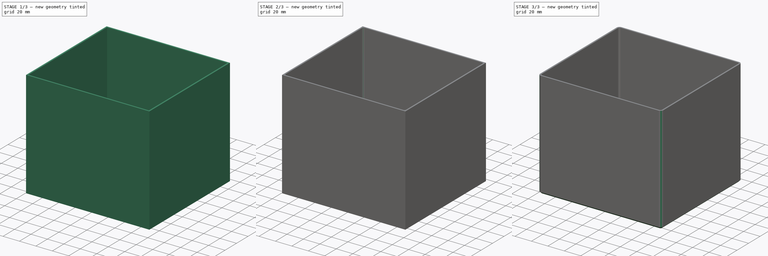
[diagram: build sequence overview — one tinted view per stage of 3, left to right]
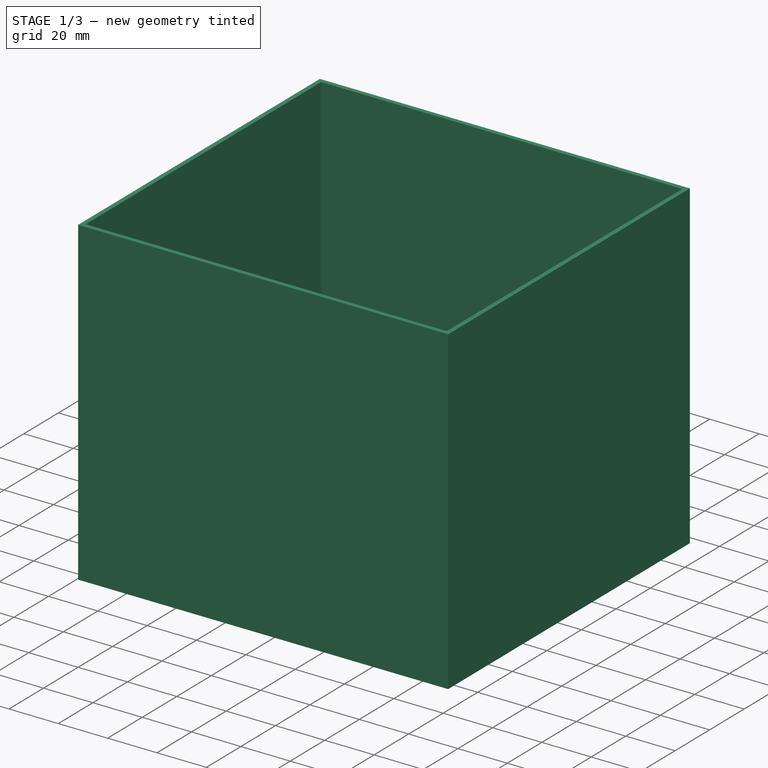
[diagram: stage 1 of 3 — iso view after this stage's code; geometry added in this stage tinted green]
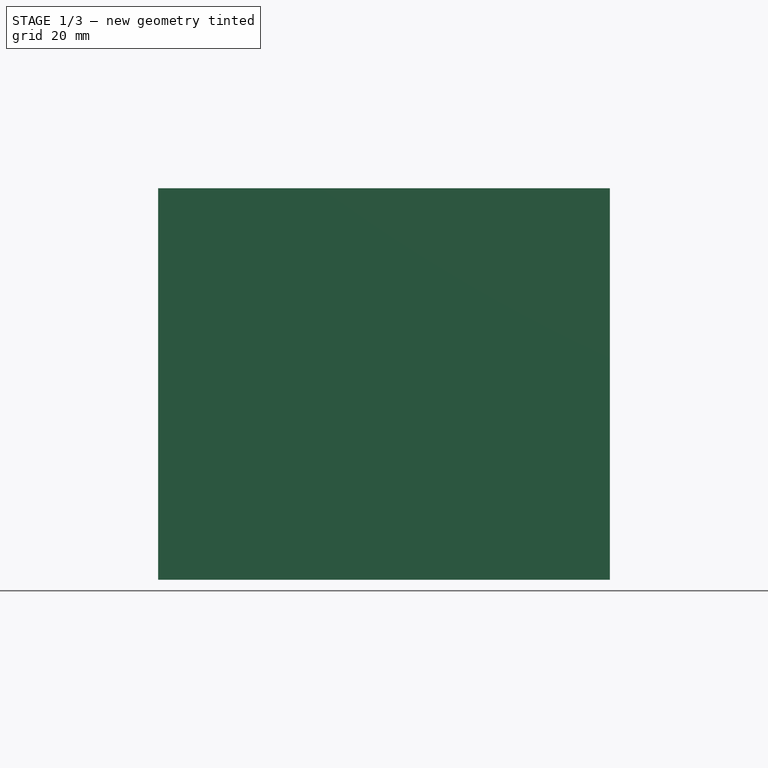
[diagram: stage 1 of 3 — front view after this stage's code; geometry added in this stage tinted green]
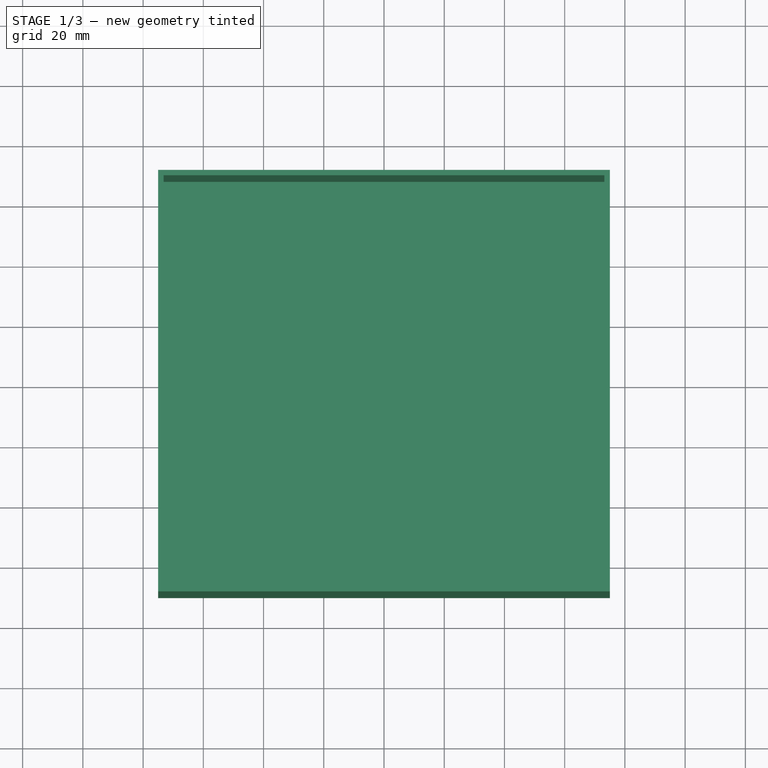
[diagram: stage 1 of 3 — top view after this stage's code; geometry added in this stage tinted green]
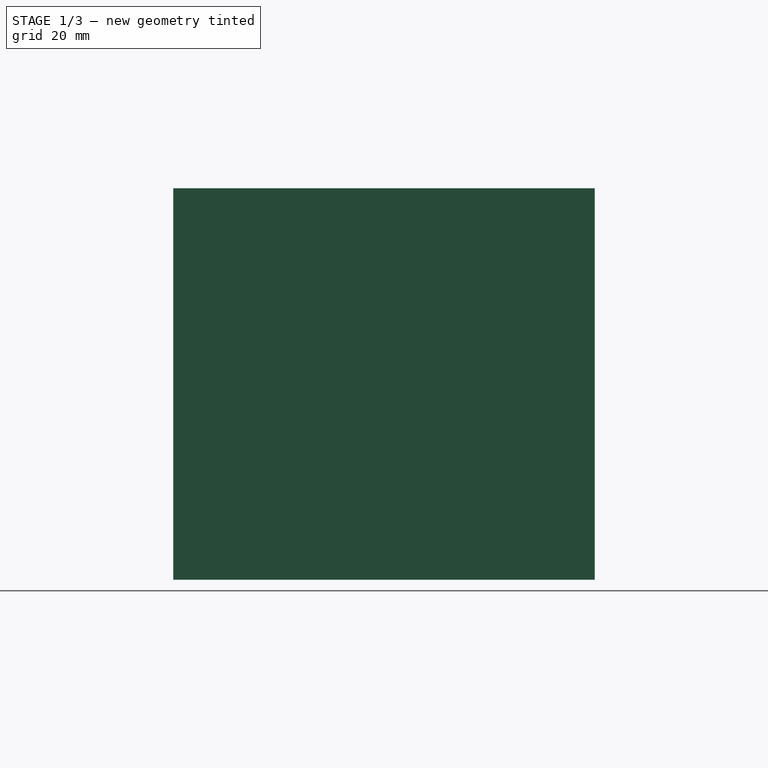
[diagram: stage 1 of 3 — right view after this stage's code; geometry added in this stage tinted green]
FCSTD DOCUMENT  (FreeCAD 0.21R33771 (Git))
Label: square_plant_pot
License: All rights reserved
LicenseURL: https://en.wikipedia.org/wiki/All_rights_reserved
objects: Sketcher::SketchObject×3, Spreadsheet::Sheet×2, PartDesign::Pocket×2, PartDesign::Fillet×2, PartDesign::Pad×1, PartDesign::Plane×1, PartDesign::Chamfer×1, PartDesign::Body×1
note: 17 computed .brp shape members not serialized (recipe doc carries the construction recipe); baked Part::Feature solids carry a one-line shape summary decoded from their .brp

FEATURE [Spreadsheet::Sheet] Spreadsheet  label="settings"
  cells = A1='Wall thickness; B1(wall_thickness)=1.8; C1='Bottom Wall thickness; D1(bottom_wall_thickness)=3; E1='Inner fillet; F1(fillet_inner)=2; G1='Drain hole dia; H1(drain_hole_dia)=10; A2='Pot width; B2(pot_width)=150; E2='outer fillet; F2(fillet_outer)=3.6; A3='Pot Depth; B3(pot_depth)=140; E3='Bottom chamfer; F3(chamfer_bottom)=2; A4='Pot height; B4(pot_height)=130
FEATURE [Spreadsheet::Sheet] Spreadsheet001  label="calculations"
  cells = A1='Cavity Width; B1(cavity_width)==<<settings>>.pot_width - <<settings>>.wall_thickness * 2; C1='Drain hole X distance; D1(hole_spacing_x)==<<settings>>.pot_width / 2; A2='Cavity Depth; B2(cavity_depth)==<<settings>>.pot_depth - <<settings>>.wall_thickness * 2; C2='Drain hole Y distance; D2(hole_spacing_y)==<<settings>>.pot_depth / 2; A3='Cavity Height; B3(cavity_height)==<<settings>>.pot_height - <<settings>>.bottom_wall_thickness
FEATURE [Sketcher::SketchObject] Sketch
  FullyConstrained = true
  MapMode = 5
  Support = -> [XY_Plane]
  expr: Constraints[10] = <<settings>>.pot_depth
  expr: Constraints[9] = <<settings>>.pot_width
  sketch-geometry (4):
    g0: LineSegment StartX=-75 StartY=70 StartZ=0 EndX=75 EndY=70 EndZ=0
    g1: LineSegment StartX=75 StartY=70 StartZ=0 EndX=75 EndY=-70 EndZ=0
    g2: LineSegment StartX=75 StartY=-70 StartZ=0 EndX=-75 EndY=-70 EndZ=0
    g3: LineSegment StartX=-75 StartY=-70 StartZ=0 EndX=-75 EndY=70 EndZ=0
  constraints (11):
    c: Coincident(g0,g1)
    c: Coincident(g1,g2)
    c: Coincident(g2,g3)
    c: Coincident(g3,g0)
    c: Horizontal(g0)
    c: Horizontal(g2)
    c: Vertical(g1)
    c: Vertical(g3)
    c: Symmetric(g0,g2,g-1)
    c: Distance(g0) = 150
    c: Distance(g1) = 140
FEATURE [PartDesign::Pad] Pad  label="pot_solid"
  Direction = (0,0,1)
  Length = 130
  Length2 = 10
  Profile = -> Sketch
  ReferenceAxis = -> Sketch [N_Axis]
  Type = 0
  expr: Length = <<settings>>.pot_height
FEATURE [PartDesign::Plane] DatumPlane  label="plane_top"
  AttachmentOffset = pos=(0,0,130) rot=(0,0,1;0rad)
  Length = 178.983
  MapMode = 5
  Placement = pos=(0,0,130) rot=(0,0,1;0rad)
  ResizeMode = 0
  Support = -> [XY_Plane]
  Width = 168.983
  expr: .AttachmentOffset.Base.z = <<settings>>.pot_height
FEATURE [Sketcher::SketchObject] Sketch001
  FullyConstrained = true
  MapMode = 5
  Placement = pos=(0,0,130) rot=(0,0,1;0rad)
  Support = -> [DatumPlane]
  expr: Constraints[10] = <<calculations>>.cavity_depth
  expr: Constraints[9] = <<calculations>>.cavity_width
  sketch-geometry (4):
    g0: LineSegment StartX=-73.2 StartY=68.2 StartZ=0 EndX=73.2 EndY=68.2 EndZ=0
    g1: LineSegment StartX=73.2 StartY=68.2 StartZ=0 EndX=73.2 EndY=-68.2 EndZ=0
    g2: LineSegment StartX=73.2 StartY=-68.2 StartZ=0 EndX=-73.2 EndY=-68.2 EndZ=0
    g3: LineSegment StartX=-73.2 StartY=-68.2 StartZ=0 EndX=-73.2 EndY=68.2 EndZ=0
  constraints (11):
    c: Coincident(g0,g1)
    c: Coincident(g1,g2)
    c: Coincident(g2,g3)
    c: Coincident(g3,g0)
    c: Horizontal(g0)
    c: Horizontal(g2)
    c: Vertical(g1)
    c: Vertical(g3)
    c: Symmetric(g0,g2,g-1)
    c: Distance(g0) = 146.4
    c: Distance(g1) = 136.4
FEATURE [PartDesign::Pocket] Pocket  label="pot_cavity"
  BaseFeature = -> Pad
  Direction = (0,0,-1)
  Length = 127
  Length2 = 5
  Profile = -> Sketch001
  ReferenceAxis = -> Sketch001 [N_Axis]
  Type = 0
  expr: Length = <<calculations>>.cavity_height
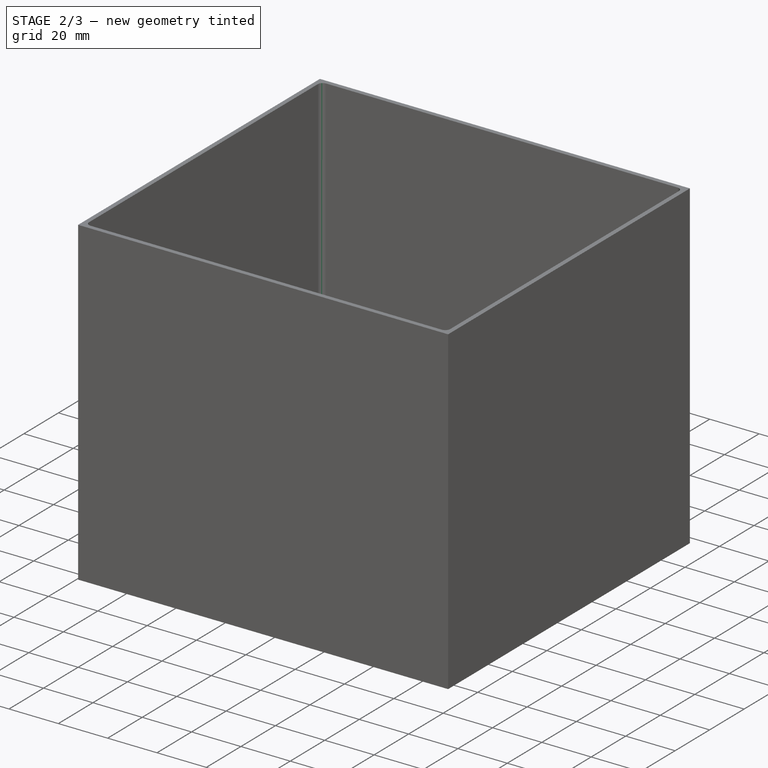
[diagram: stage 2 of 3 — iso view after this stage's code; geometry added in this stage tinted green]
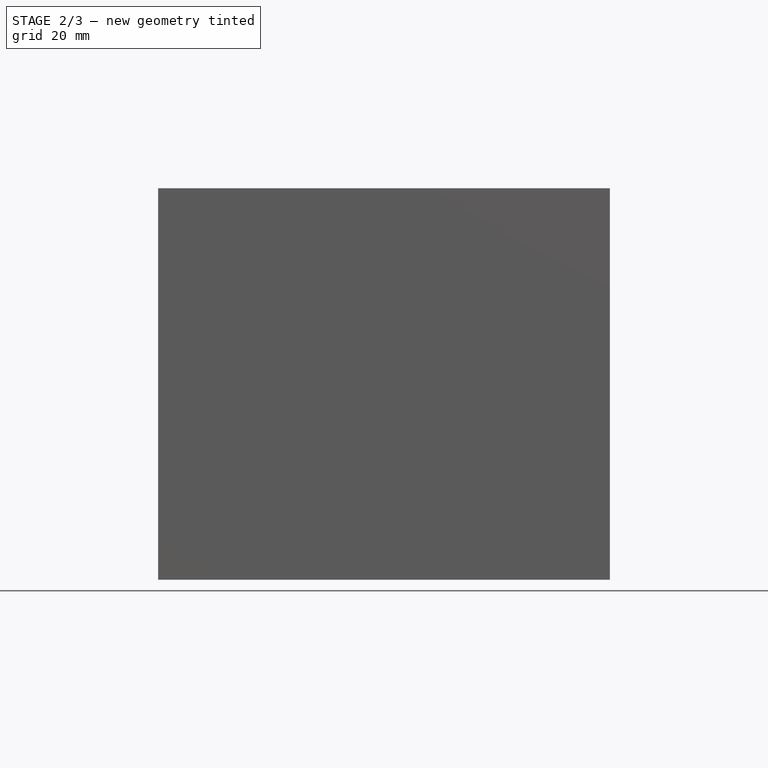
[diagram: stage 2 of 3 — front view after this stage's code; geometry added in this stage tinted green]
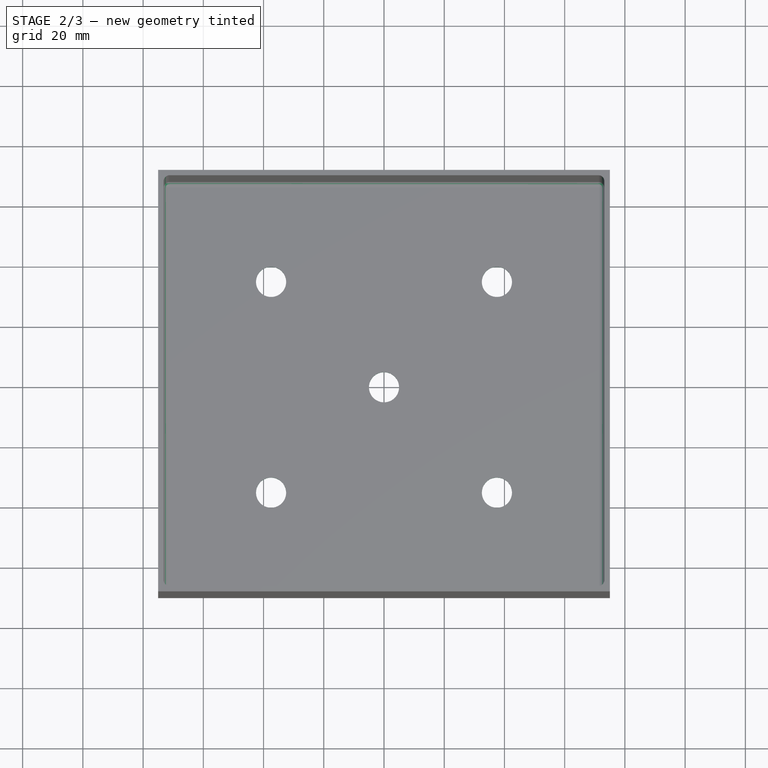
[diagram: stage 2 of 3 — top view after this stage's code; geometry added in this stage tinted green]
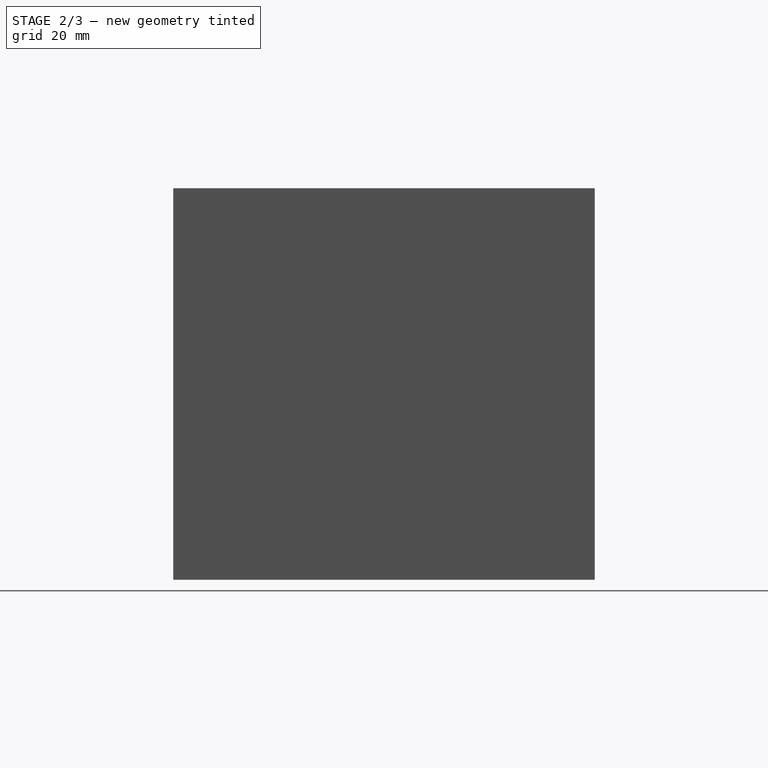
[diagram: stage 2 of 3 — right view after this stage's code; geometry added in this stage tinted green]
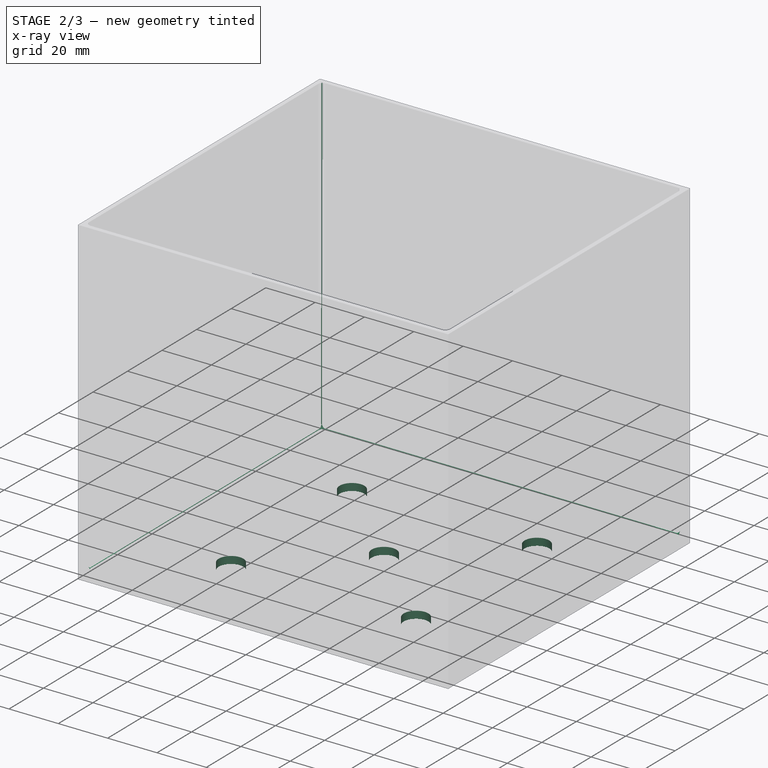
[diagram: stage 2 of 3 — x-ray composite at the iso view; earlier geometry ghosted, this stage's added geometry solid]
FEATURE [Sketcher::SketchObject] Sketch002
  FullyConstrained = true
  MapMode = 5
  Support = -> [XY_Plane]
  expr: Constraints[10] = <<calculations>>.hole_spacing_y
  expr: Constraints[18] = <<settings>>.drain_hole_dia
  expr: Constraints[9] = <<calculations>>.hole_spacing_x
  sketch-geometry (9):
    g0: LineSegment StartX=-37.5 StartY=35 StartZ=0 EndX=37.5 EndY=35 EndZ=0
    g1: LineSegment StartX=37.5 StartY=35 StartZ=0 EndX=37.5 EndY=-35 EndZ=0
    g2: LineSegment StartX=37.5 StartY=-35 StartZ=0 EndX=-37.5 EndY=-35 EndZ=0
    g3: LineSegment StartX=-37.5 StartY=-35 StartZ=0 EndX=-37.5 EndY=35 EndZ=0
    g4: Circle CenterX=-37.5 CenterY=35 CenterZ=0 NormalX=0 NormalY=0 NormalZ=1 AngleXU=0 Radius=5
    g5: Circle CenterX=37.5 CenterY=35 CenterZ=0 NormalX=0 NormalY=0 NormalZ=1 AngleXU=0 Radius=5
    g6: Circle CenterX=37.5 CenterY=-35 CenterZ=0 NormalX=0 NormalY=0 NormalZ=1 AngleXU=0 Radius=5
    g7: Circle CenterX=-37.5 CenterY=-35 CenterZ=0 NormalX=0 NormalY=0 NormalZ=1 AngleXU=0 Radius=5
    g8: Circle CenterX=0 CenterY=0 CenterZ=0 NormalX=0 NormalY=0 NormalZ=1 AngleXU=0 Radius=5
  constraints (21):
    c: Coincident(g0,g1)
    c: Coincident(g1,g2)
    c: Coincident(g2,g3)
    c: Coincident(g3,g0)
    c: Horizontal(g0)
    c: Horizontal(g2)
    c: Vertical(g1)
    c: Vertical(g3)
    c: Symmetric(g0,g2,g-1)
    c: Distance(g0) = 75
    c: Distance(g1) = 70
    c: Coincident(g4,g0)
    c: Coincident(g5,g0)
    c: Coincident(g6,g1)
    c: Coincident(g7,g2)
    c: Equal(g4,g7)
    c: Equal(g4,g6)
    c: Equal(g4,g5)
    c: Diameter(g4) = 10
    c: Coincident(g8,g-1)
    c: Equal(g4,g8)
FEATURE [PartDesign::Pocket] Pocket001  label="drain_holes"
  BaseFeature = -> Pocket
  Direction = (0,0,-1)
  Length = 5
  Length2 = 5
  Profile = -> Sketch002
  ReferenceAxis = -> Sketch002 [N_Axis]
  Reversed = true
  Type = 1
FEATURE [PartDesign::Fillet] Fillet  label="inner_fillet"
  Base = -> Pocket001 [Edge33,Edge39,Edge34,Edge32,Edge36,Edge35,Edge38,Edge37]
  BaseFeature = -> Pocket001
  Radius = 2
  SupportTransform = false
  UseAllEdges = false
  expr: Radius = <<settings>>.fillet_inner
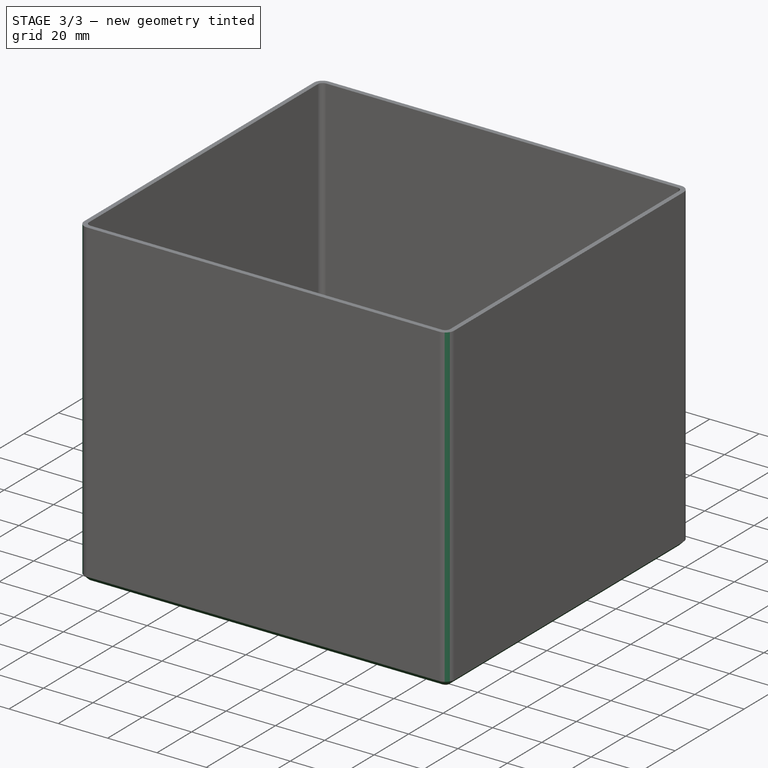
[diagram: stage 3 of 3 — iso view after this stage's code; geometry added in this stage tinted green]
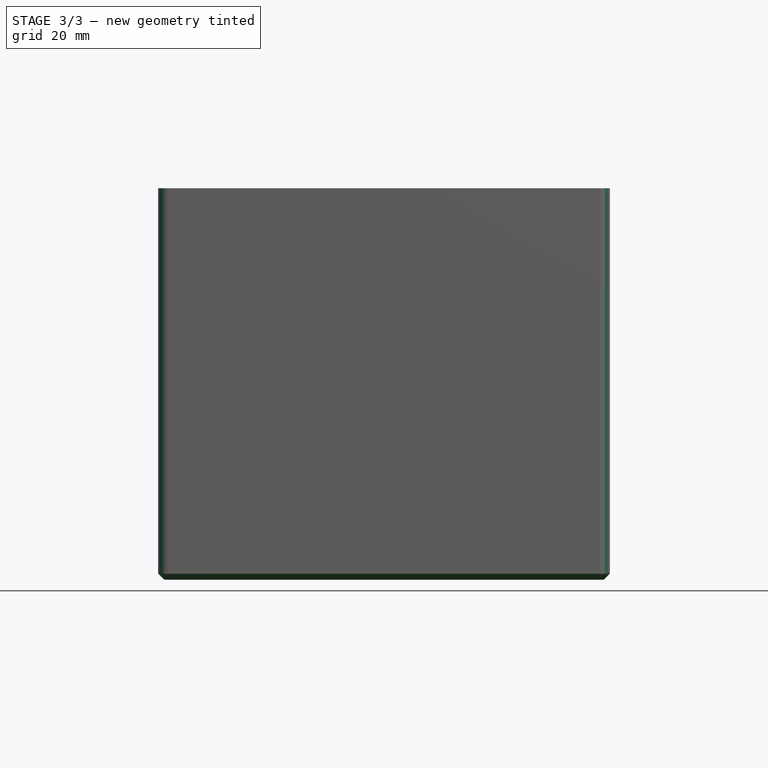
[diagram: stage 3 of 3 — front view after this stage's code; geometry added in this stage tinted green]
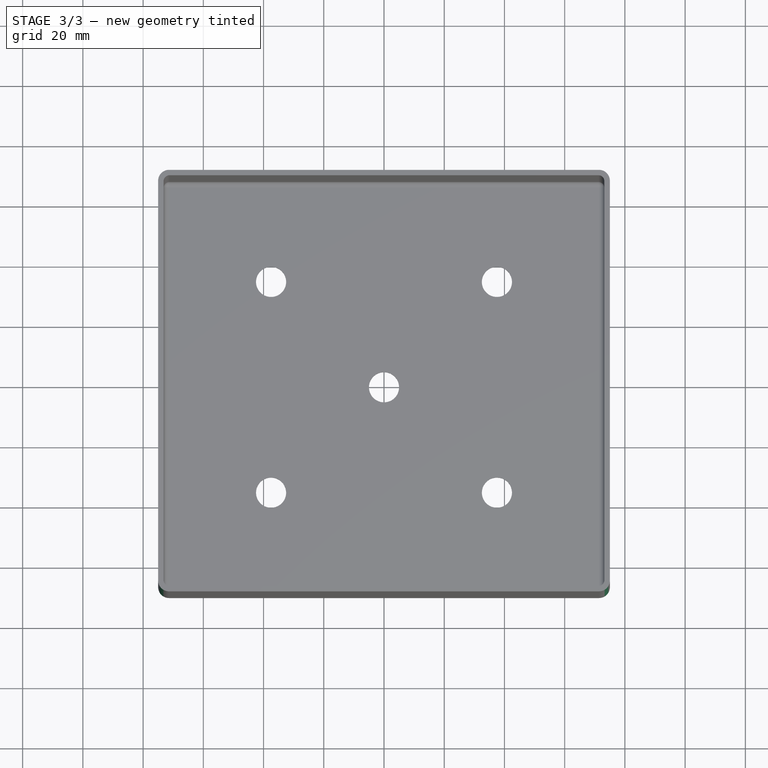
[diagram: stage 3 of 3 — top view after this stage's code; geometry added in this stage tinted green]
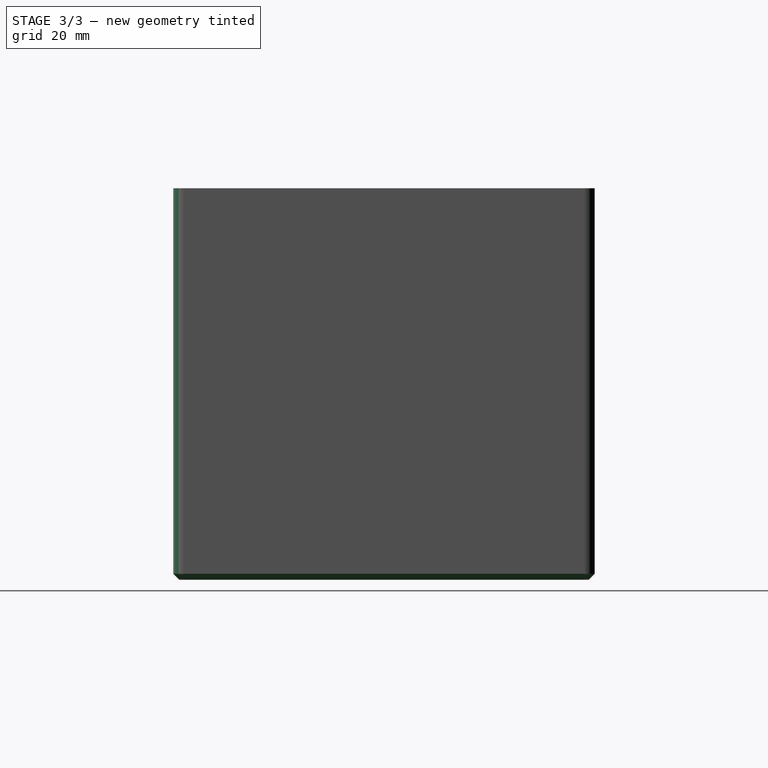
[diagram: stage 3 of 3 — right view after this stage's code; geometry added in this stage tinted green]
FEATURE [PartDesign::Fillet] Fillet001  label="outer_fillet"
  Base = -> Fillet [Edge32,Edge34,Edge30,Edge29]
  BaseFeature = -> Fillet
  Radius = 3.6
  SupportTransform = false
  UseAllEdges = false
  expr: Radius = <<settings>>.fillet_outer
FEATURE [PartDesign::Chamfer] Chamfer  label="bottom_chamfer"
  Angle = 45
  Base = -> Fillet001 [Edge17]
  BaseFeature = -> Fillet001
  ChamferType = 0
  FlipDirection = false
  Size = 2
  Size2 = 1
  SupportTransform = false
  UseAllEdges = false
  expr: Size = <<settings>>.chamfer_bottom
FEATURE [PartDesign::Body] Body
  Group = -> [Sketch,Pad,DatumPlane,Sketch001,Pocket,Sketch002,Pocket001,Fillet,Fillet001,Chamfer]
  Origin = -> Origin
  Tip = -> Chamfer
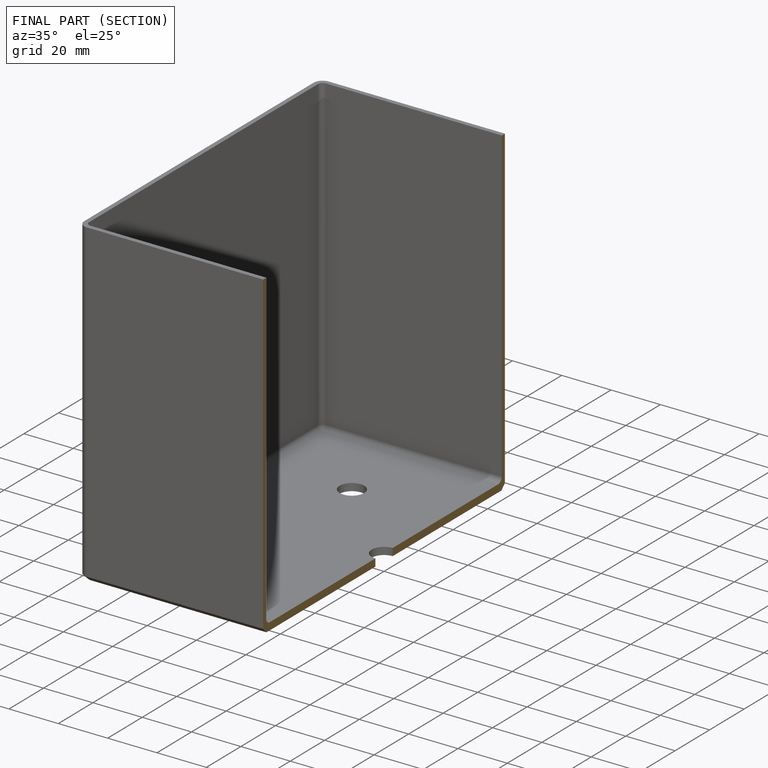
[diagram: finished part — half-section view (interior)]
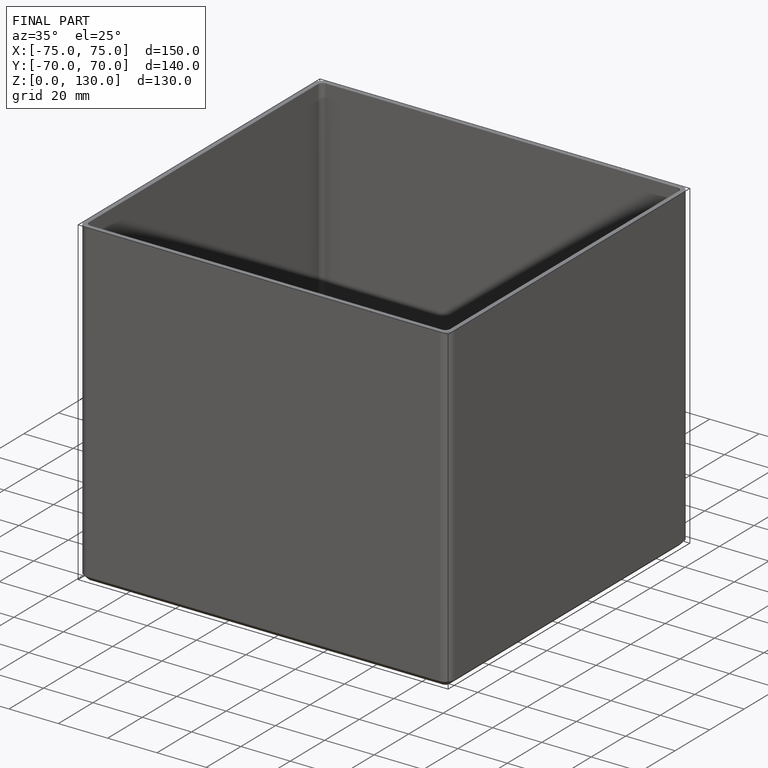
[diagram: finished part — iso view with bounding-box wireframe]
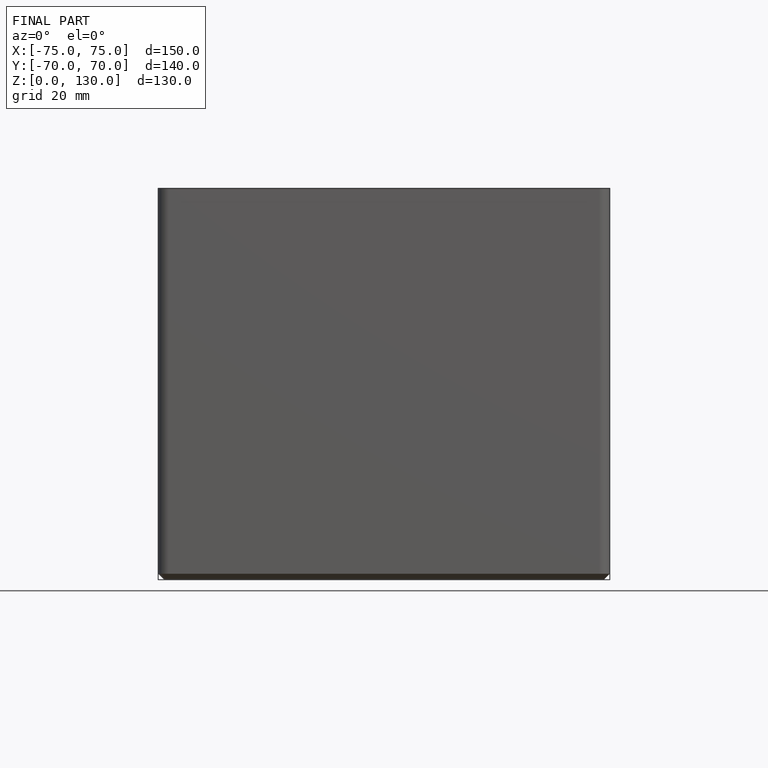
[diagram: finished part — front view with bounding-box wireframe]
